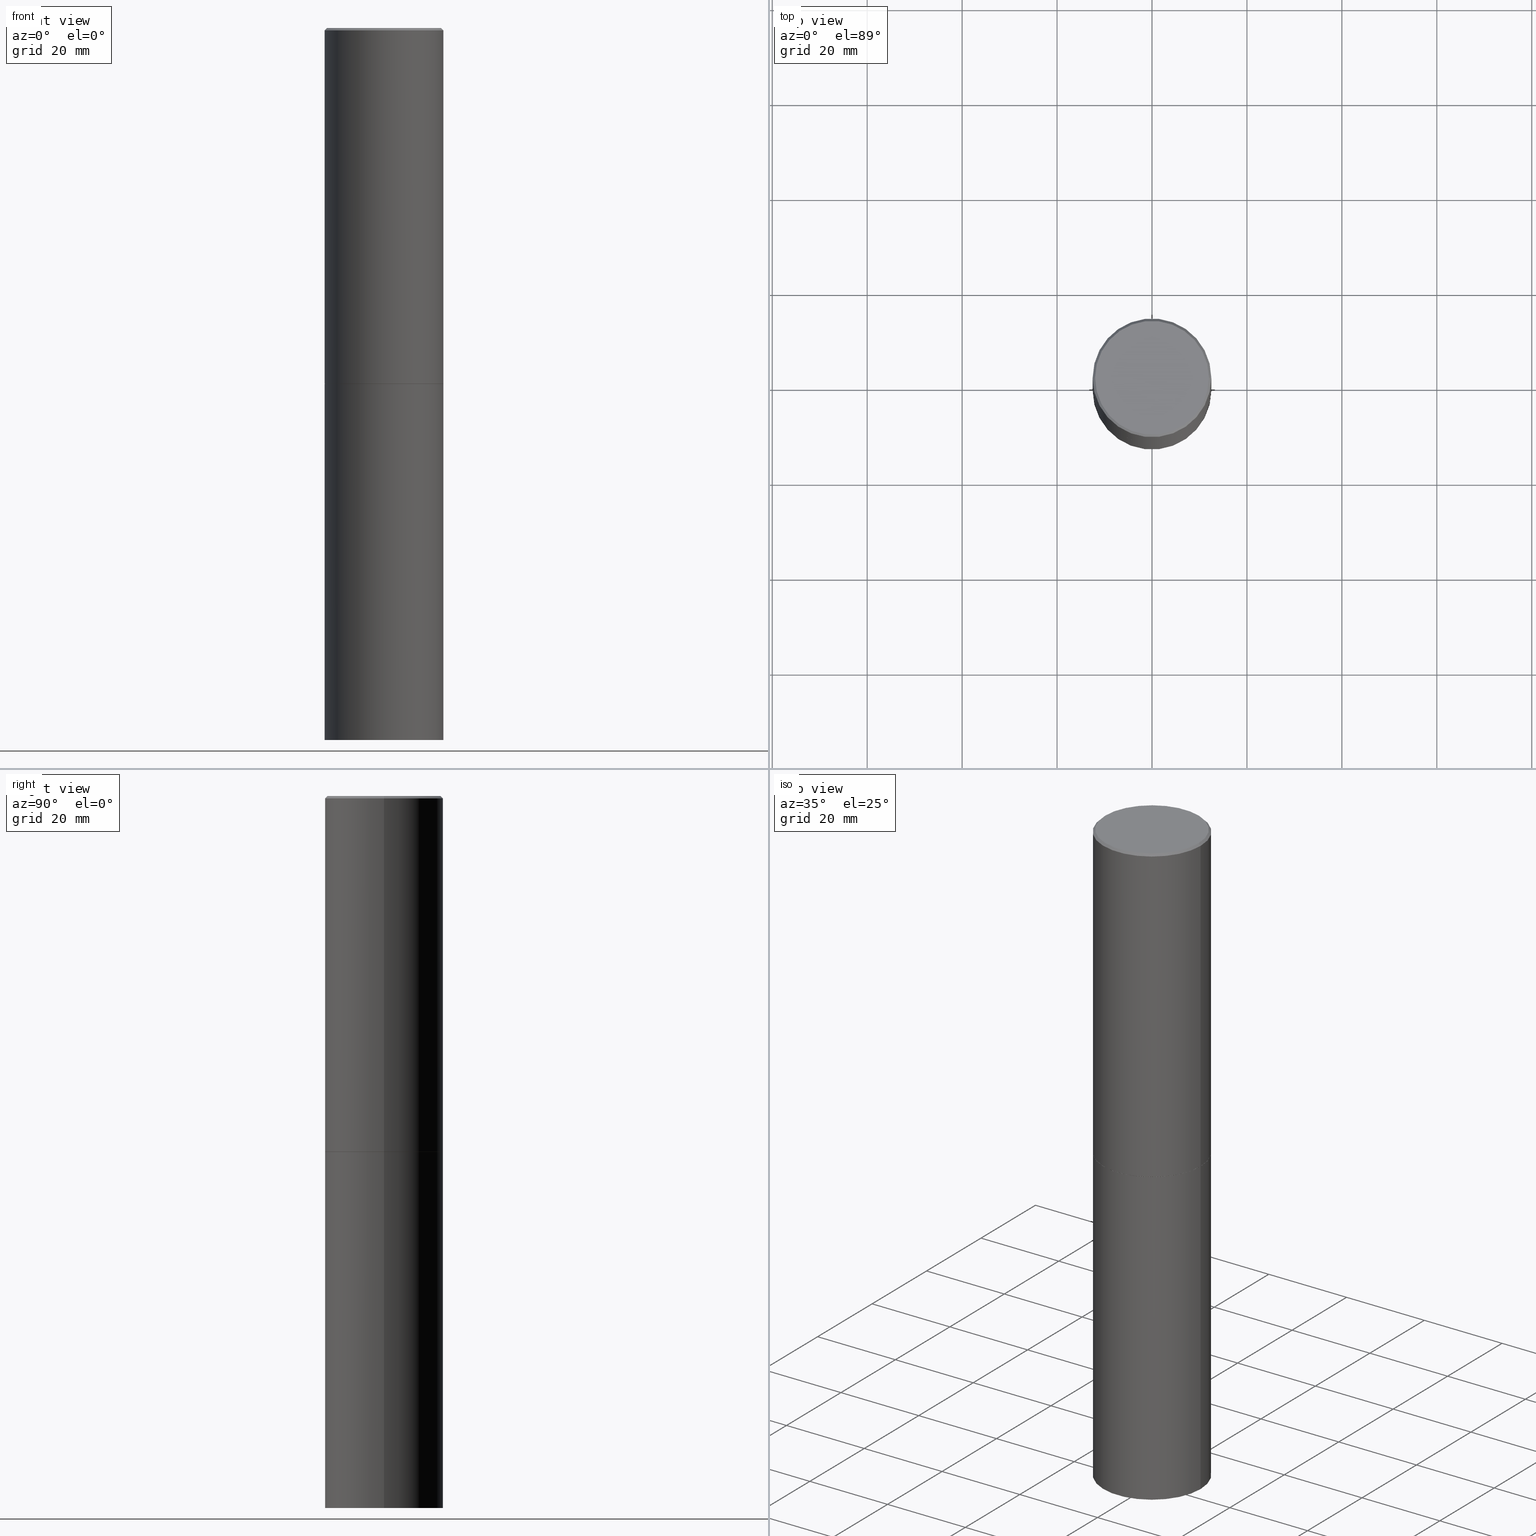
[diagram: canonical four-view strip — front | top / right | iso, engineering-drawing reading convention]
A machine part, canonical four-view strip (front | top / right | iso — engineering-drawing reading convention). The complete STEP part file that produces these views, byte-faithful:
ISO-10303-21;
HEADER;
FILE_DESCRIPTION (( 'STEP AP203' ),
    '1' );
FILE_NAME ('74883.STEP',
    '2024-05-03T15:04:36',
    ( '' ),
    ( '' ),
    'SwSTEP 2.0',
    'SolidWorks 2023',
    '' );
FILE_SCHEMA (( 'CONFIG_CONTROL_DESIGN' ));
ENDSEC;

DATA;
#1 = PERSON ( 'UNSPECIFIED', 'UNSPECIFIED', 'UNSPECIFIED', ('UNSPECIFIED'), ('UNSPECIFIED'), ('UNSPECIFIED') ) ;
#2 = VERTEX_POINT ( 'NONE', #101 ) ;
#3 = LINE ( 'NONE', #239, #11 ) ;
#4 = DIRECTION ( 'NONE',  ( -2.445468806185136597E-29, 3.491481338843145583E-15, 1.000000000000000000 ) ) ;
#5 = APPROVAL_PERSON_ORGANIZATION ( #352, #161, #218 ) ;
#6 = CARTESIAN_POINT ( 'NONE',  ( 0.000000000000000000, 0.000000000000000000, 0.000000000000000000 ) ) ;
#7 = CARTESIAN_POINT ( 'NONE',  ( 1.444171603492632270E-28, -2.061894304653819197E-14, -5.905499999999999972 ) ) ;
#8 = FACE_OUTER_BOUND ( 'NONE', #121, .T. ) ;
#9 = CALENDAR_DATE ( 2024, 3, 5 ) ;
#10 = UNCERTAINTY_MEASURE_WITH_UNIT (LENGTH_MEASURE( 1.000000000000000082E-05 ), #128, 'distance_accuracy_value', 'NONE');
#11 = VECTOR ( 'NONE', #317, 39.37007874015748143 ) ;
#12 = CC_DESIGN_PERSON_AND_ORGANIZATION_ASSIGNMENT ( #214, #126, ( #334 ) ) ;
#13 = DIRECTION ( 'NONE',  ( 1.000000000000000000, -6.982962677686265922E-15, 4.876176775795935793E-29 ) ) ;
#14 = APPROVAL_ROLE ( '' ) ;
#15 = COORDINATED_UNIVERSAL_TIME_OFFSET ( 5, 0, .BEHIND. ) ;
#16 = ORIENTED_EDGE ( 'NONE', *, *, #295, .T. ) ;
#17 = MECHANICAL_CONTEXT ( 'NONE', #51, 'mechanical' ) ;
#18 = ORIENTED_EDGE ( 'NONE', *, *, #365, .T. ) ;
#19 = CALENDAR_DATE ( 2024, 3, 5 ) ;
#20 = DIRECTION ( 'NONE',  ( 1.000000000000000000, -6.982962677686265922E-15, 0.000000000000000000 ) ) ;
#21 = LINE ( 'NONE', #43, #293 ) ;
#22 = AXIS2_PLACEMENT_3D ( 'NONE', #6, #149, #177 ) ;
#23 =( GEOMETRIC_REPRESENTATION_CONTEXT ( 3 ) GLOBAL_UNCERTAINTY_ASSIGNED_CONTEXT ( ( #10 ) ) GLOBAL_UNIT_ASSIGNED_CONTEXT ( ( #128, #252, #100 ) ) REPRESENTATION_CONTEXT ( 'NONE', 'WORKASPACE' ) );
#24 = COORDINATED_UNIVERSAL_TIME_OFFSET ( 5, 0, .BEHIND. ) ;
#25 = VERTEX_POINT ( 'NONE', #50 ) ;
#26 = ORIENTED_EDGE ( 'NONE', *, *, #55, .T. ) ;
#27 = ORIENTED_EDGE ( 'NONE', *, *, #237, .F. ) ;
#28 = ADVANCED_FACE ( 'NONE', ( #223 ), #116, .T. ) ;
#29 = EDGE_LOOP ( 'NONE', ( #56, #97, #72, #27 ) ) ;
#30 = DIRECTION ( 'NONE',  ( 0.7071067811868130271, -2.468850131085038979E-15, 0.7071067811862817853 ) ) ;
#31 = AXIS2_PLACEMENT_3D ( 'NONE', #202, #4, #276 ) ;
#32 = MANIFOLD_SOLID_BREP ( 'Body-Move/Copy2[2]', #361 ) ;
#33 = CARTESIAN_POINT ( 'NONE',  ( 7.220735744022851398E-29, -1.030929694920215344E-14, -2.952699999999999214 ) ) ;
#34 = AXIS2_PLACEMENT_3D ( 'NONE', #154, #243, #292 ) ;
#35 = PERSON_AND_ORGANIZATION ( #1, #78 ) ;
#36 = EDGE_CURVE ( 'NONE', #25, #310, #21, .T. ) ;
#37 = DIRECTION ( 'NONE',  ( -1.000000000000000000, 6.982962677686265922E-15, -4.876176775795935793E-29 ) ) ;
#38 = PERSON_AND_ORGANIZATION_ROLE ( 'design_supplier' ) ;
#39 = CIRCLE ( 'NONE', #225, 0.4921499999999999764 ) ;
#40 = PERSON_AND_ORGANIZATION ( #1, #78 ) ;
#41 = ORIENTED_EDGE ( 'NONE', *, *, #206, .T. ) ;
#42 = DIRECTION ( 'NONE',  ( -2.445468806185136597E-29, 3.491481338843145583E-15, 1.000000000000000000 ) ) ;
#43 = CARTESIAN_POINT ( 'NONE',  ( -0.4921499999999998098, 3.496936074043331714E-15, -2.420853904668950949E-29 ) ) ;
#44 = EDGE_CURVE ( 'NONE', #2, #302, #255, .T. ) ;
#45 = APPROVAL_DATE_TIME ( #301, #280 ) ;
#46 = CARTESIAN_POINT ( 'NONE',  ( 7.220735744022851398E-29, -1.030929694920215344E-14, -2.952699999999999214 ) ) ;
#47 = ORIENTED_EDGE ( 'NONE', *, *, #36, .T. ) ;
#48 = CALENDAR_DATE ( 2024, 3, 5 ) ;
#49 = EDGE_LOOP ( 'NONE', ( #140, #220 ) ) ;
#50 = CARTESIAN_POINT ( 'NONE',  ( -0.4921499999999999764, -1.690881473276754954E-15, -2.951700000000000212 ) ) ;
#51 = APPLICATION_CONTEXT ( 'configuration controlled 3d designs of mechanical parts and assemblies' ) ;
#52 = AXIS2_PLACEMENT_3D ( 'NONE', #112, #258, #57 ) ;
#53 = ORIENTED_EDGE ( 'NONE', *, *, #357, .T. ) ;
#54 = AXIS2_PLACEMENT_3D ( 'NONE', #356, #69, #308 ) ;
#55 = EDGE_CURVE ( 'NONE', #302, #310, #162, .T. ) ;
#56 = ORIENTED_EDGE ( 'NONE', *, *, #74, .T. ) ;
#57 = DIRECTION ( 'NONE',  ( -1.000000000000000000, 6.982962677686265922E-15, -4.876176775795935793E-29 ) ) ;
#58 = FACE_OUTER_BOUND ( 'NONE', #224, .T. ) ;
#59 = CIRCLE ( 'NONE', #77, 0.4921499999999999764 ) ;
#60 = DIRECTION ( 'NONE',  ( 1.000000000000000000, -6.982962677686265922E-15, 0.000000000000000000 ) ) ;
#61 = EDGE_CURVE ( 'NONE', #189, #104, #181, .T. ) ;
#62 = DIRECTION ( 'NONE',  ( -1.000000000000000000, 6.982962677686265922E-15, 0.000000000000000000 ) ) ;
#63 = AXIS2_PLACEMENT_3D ( 'NONE', #346, #176, #205 ) ;
#64 = PERSON_AND_ORGANIZATION_ROLE ( 'design_owner' ) ;
#65 = EDGE_LOOP ( 'NONE', ( #217, #80, #167, #336 ) ) ;
#66 = DIRECTION ( 'NONE',  ( 1.000000000000000000, -6.982962677686264344E-15, 0.000000000000000000 ) ) ;
#67 = ORIENTED_EDGE ( 'NONE', *, *, #155, .F. ) ;
#68 = APPROVAL_STATUS ( 'not_yet_approved' ) ;
#69 = DIRECTION ( 'NONE',  ( -2.445468806185136597E-29, 3.491481338843145583E-15, 1.000000000000000000 ) ) ;
#70 = EDGE_CURVE ( 'NONE', #189, #360, #39, .T. ) ;
#71 = APPROVAL_ROLE ( '' ) ;
#72 = ORIENTED_EDGE ( 'NONE', *, *, #365, .F. ) ;
#73 = CARTESIAN_POINT ( 'NONE',  ( 7.218290275216666916E-29, -1.030580546786331359E-14, -2.951700000000000212 ) ) ;
#74 = EDGE_CURVE ( 'NONE', #272, #328, #270, .T. ) ;
#75 = VERTEX_POINT ( 'NONE', #240 ) ;
#76 = ADVANCED_FACE ( 'NONE', ( #318 ), #210, .T. ) ;
#77 = AXIS2_PLACEMENT_3D ( 'NONE', #238, #119, #242 ) ;
#78 = ORGANIZATION ( 'UNSPECIFIED', 'UNSPECIFIED', '' ) ;
#79 = AXIS2_PLACEMENT_3D ( 'NONE', #236, #147, #168 ) ;
#80 = ORIENTED_EDGE ( 'NONE', *, *, #246, .F. ) ;
#81 = CARTESIAN_POINT ( 'NONE',  ( 7.220735744022851398E-29, -1.030929694920215344E-14, -2.952699999999999214 ) ) ;
#82 = DIRECTION ( 'NONE',  ( -2.445468806185136597E-29, 3.491481338843145583E-15, 1.000000000000000000 ) ) ;
#83 = AXIS2_PLACEMENT_3D ( 'NONE', #93, #118, #37 ) ;
#84 = EDGE_CURVE ( 'NONE', #360, #189, #232, .T. ) ;
#85 = LOCAL_TIME ( 11, 4, 36.00000000000000000, #158 ) ;
#86 = DIRECTION ( 'NONE',  ( 1.000000000000000000, -6.982962677686265922E-15, 4.876176775795935793E-29 ) ) ;
#87 = FACE_OUTER_BOUND ( 'NONE', #65, .T. ) ;
#88 = FACE_OUTER_BOUND ( 'NONE', #170, .T. ) ;
#89 = DIRECTION ( 'NONE',  ( 1.000000000000000000, -6.982962677686265922E-15, 4.876006802227162976E-29 ) ) ;
#90 = CARTESIAN_POINT ( 'NONE',  ( -0.4921499999999999764, -1.196718392382684217E-14, -2.952700000000000102 ) ) ;
#91 = FACE_OUTER_BOUND ( 'NONE', #229, .T. ) ;
#92 = PRODUCT_RELATED_PRODUCT_CATEGORY ( 'detail', '', ( #94 ) ) ;
#93 = CARTESIAN_POINT ( 'NONE',  ( 3.436665081823367957E-15, 0.4921499999999896513, -2.952700000000001435 ) ) ;
#94 = PRODUCT ( '74883', '74883', '', ( #17 ) ) ;
#95 = AXIS2_PLACEMENT_3D ( 'NONE', #341, #82, #86 ) ;
#96 = DESIGN_CONTEXT ( 'detailed design', #283, 'design' ) ;
#97 = ORIENTED_EDGE ( 'NONE', *, *, #155, .T. ) ;
#98 = DIRECTION ( 'NONE',  ( -0.7071067811865467956, 2.468850131082249172E-15, -0.7071067811865482389 ) ) ;
#99 = EDGE_CURVE ( 'NONE', #310, #302, #105, .T. ) ;
#100 =( NAMED_UNIT ( * ) SI_UNIT ( $, .STERADIAN. ) SOLID_ANGLE_UNIT ( ) );
#101 = CARTESIAN_POINT ( 'NONE',  ( 0.4921499999999999764, -1.374247054968660936E-14, -2.951700000000000212 ) ) ;
#102 = EDGE_LOOP ( 'NONE', ( #219, #351, #311, #215 ) ) ;
#103 = PERSON_AND_ORGANIZATION ( #1, #78 ) ;
#104 = VERTEX_POINT ( 'NONE', #271 ) ;
#105 = CIRCLE ( 'NONE', #34, 0.4921499999999996988 ) ;
#106 = APPROVAL_DATE_TIME ( #254, #161 ) ;
#107 = ORIENTED_EDGE ( 'NONE', *, *, #273, .T. ) ;
#108 = ADVANCED_FACE ( 'NONE', ( #175 ), #277, .T. ) ;
#109 = ORIENTED_EDGE ( 'NONE', *, *, #226, .F. ) ;
#110 = VECTOR ( 'NONE', #30, 39.37007874015748854 ) ;
#111 = VERTEX_POINT ( 'NONE', #248 ) ;
#112 = CARTESIAN_POINT ( 'NONE',  ( 3.436665081823440533E-15, 0.4921499999999793262, -5.905500000000001748 ) ) ;
#113 = ADVANCED_FACE ( 'NONE', ( #87 ), #354, .T. ) ;
#114 = LOCAL_TIME ( 11, 4, 36.00000000000000000, #24 ) ;
#115 = DIRECTION ( 'NONE',  ( 2.438088387897960049E-29, -3.491481338843145188E-15, -1.000000000000000000 ) ) ;
#116 = CONICAL_SURFACE ( 'NONE', #172, 0.4911499999999999755, 0.7853981633978239785 ) ;
#117 = AXIS2_PLACEMENT_3D ( 'NONE', #359, #259, #20 ) ;
#118 = DIRECTION ( 'NONE',  ( 2.438088387897960049E-29, -3.491481338843145188E-15, -1.000000000000000000 ) ) ;
#119 = DIRECTION ( 'NONE',  ( -2.445468806185136597E-29, 3.491481338843145583E-15, 1.000000000000000000 ) ) ;
#120 = ADVANCED_FACE ( 'NONE', ( #211 ), #321, .T. ) ;
#121 = EDGE_LOOP ( 'NONE', ( #107, #265 ) ) ;
#122 = DIRECTION ( 'NONE',  ( -1.000000000000000000, 6.982962677686265922E-15, 0.000000000000000000 ) ) ;
#123 = CARTESIAN_POINT ( 'NONE',  ( 0.000000000000000000, 0.000000000000000000, 0.000000000000000000 ) ) ;
#124 = ORIENTED_EDGE ( 'NONE', *, *, #237, .T. ) ;
#125 = CARTESIAN_POINT ( 'NONE',  ( -0.4921499999999996988, 3.366835455046430506E-15, -0.02000000000000009409 ) ) ;
#126 = PERSON_AND_ORGANIZATION_ROLE ( 'classification_officer' ) ;
#127 = ORIENTED_EDGE ( 'NONE', *, *, #44, .T. ) ;
#128 =( CONVERSION_BASED_UNIT ( 'INCH', #139 ) LENGTH_UNIT ( ) NAMED_UNIT ( #228 ) );
#129 = DIRECTION ( 'NONE',  ( -2.445468806185136877E-29, 3.491481338843145188E-15, 1.000000000000000000 ) ) ;
#130 = ADVANCED_FACE ( 'NONE', ( #8 ), #297, .F. ) ;
#131 = DATE_AND_TIME ( #48, #164 ) ;
#132 = APPLICATION_PROTOCOL_DEFINITION ( 'international standard', 'config_control_design', 1994, #283 ) ;
#133 = APPROVAL_STATUS ( 'not_yet_approved' ) ;
#134 = DIRECTION ( 'NONE',  ( -2.445468806185136877E-29, 3.491481338843145188E-15, 1.000000000000000000 ) ) ;
#135 = AXIS2_PLACEMENT_3D ( 'NONE', #274, #173, #122 ) ;
#136 = AXIS2_PLACEMENT_3D ( 'NONE', #123, #298, #245 ) ;
#137 = EDGE_LOOP ( 'NONE', ( #241, #284 ) ) ;
#138 = PERSON_AND_ORGANIZATION ( #1, #78 ) ;
#139 = LENGTH_MEASURE_WITH_UNIT ( LENGTH_MEASURE( 0.02539999999999999897 ), #332 );
#140 = ORIENTED_EDGE ( 'NONE', *, *, #70, .F. ) ;
#141 = PLANE ( 'NONE',  #52 ) ;
#142 = DIRECTION ( 'NONE',  ( 1.000000000000000000, -6.982962677686265922E-15, 0.000000000000000000 ) ) ;
#143 = VERTEX_POINT ( 'NONE', #90 ) ;
#144 = AXIS2_PLACEMENT_3D ( 'NONE', #198, #344, #89 ) ;
#145 = ADVANCED_FACE ( 'NONE', ( #153 ), #349, .F. ) ;
#146 = CC_DESIGN_APPROVAL ( #161, ( #334 ) ) ;
#147 = DIRECTION ( 'NONE',  ( -2.445468806185136597E-29, 3.491481338843145583E-15, 1.000000000000000000 ) ) ;
#148 = EDGE_CURVE ( 'NONE', #111, #310, #171, .T. ) ;
#149 = DIRECTION ( 'NONE',  ( -2.445468806185136597E-29, 3.491481338843145583E-15, 1.000000000000000000 ) ) ;
#150 = CALENDAR_DATE ( 2024, 3, 5 ) ;
#151 = DIRECTION ( 'NONE',  ( 1.000000000000000000, -6.982962677686265922E-15, 0.000000000000000000 ) ) ;
#152 = MANIFOLD_SOLID_BREP ( 'Body-Move/Copy2[1]', #319 ) ;
#153 = FACE_OUTER_BOUND ( 'NONE', #137, .T. ) ;
#154 = CARTESIAN_POINT ( 'NONE',  ( 4.890937612370296805E-31, -6.982962677686323656E-17, -0.02000000000000009409 ) ) ;
#155 = EDGE_CURVE ( 'NONE', #328, #25, #213, .T. ) ;
#156 = CALENDAR_DATE ( 2024, 3, 5 ) ;
#157 = CARTESIAN_POINT ( 'NONE',  ( 0.4921499999999999764, -3.436665081823295777E-15, 2.399810400207969603E-29 ) ) ;
#158 = COORDINATED_UNIVERSAL_TIME_OFFSET ( 5, 0, .BEHIND. ) ;
#159 = DIRECTION ( 'NONE',  ( 1.000000000000000000, -6.982962677686264344E-15, 0.000000000000000000 ) ) ;
#160 = LINE ( 'NONE', #313, #193 ) ;
#161 = APPROVAL ( #133, 'UNSPECIFIED' ) ;
#162 = CIRCLE ( 'NONE', #54, 0.4921499999999996988 ) ;
#163 = CC_DESIGN_PERSON_AND_ORGANIZATION_ASSIGNMENT ( #358, #38, ( #174 ) ) ;
#164 = LOCAL_TIME ( 11, 4, 36.00000000000000000, #279 ) ;
#165 = CARTESIAN_POINT ( 'NONE',  ( -0.4911499999999999755, -6.814167848168200725E-15, -2.952699999999999214 ) ) ;
#166 = CARTESIAN_POINT ( 'NONE',  ( -0.4921499999999996988, 3.366835455046430506E-15, -0.02000000000000009409 ) ) ;
#167 = ORIENTED_EDGE ( 'NONE', *, *, #148, .T. ) ;
#168 = DIRECTION ( 'NONE',  ( 1.000000000000000000, -6.982962677686264344E-15, 0.000000000000000000 ) ) ;
#169 = DIRECTION ( 'NONE',  ( -0.7071067811868130271, 7.493145998871311837E-15, 0.7071067811862817853 ) ) ;
#170 = EDGE_LOOP ( 'NONE', ( #18, #47, #335, #363 ) ) ;
#171 = LINE ( 'NONE', #125, #337 ) ;
#172 = AXIS2_PLACEMENT_3D ( 'NONE', #46, #282, #159 ) ;
#173 = DIRECTION ( 'NONE',  ( 2.445468806185136597E-29, -3.491481338843145583E-15, -1.000000000000000000 ) ) ;
#174 = PRODUCT_DEFINITION_FORMATION_WITH_SPECIFIED_SOURCE ( 'ANY', '', #94, .NOT_KNOWN. ) ;
#175 = FACE_OUTER_BOUND ( 'NONE', #257, .T. ) ;
#176 = DIRECTION ( 'NONE',  ( -2.445468806185136597E-29, 3.491481338843145583E-15, 1.000000000000000000 ) ) ;
#177 = DIRECTION ( 'NONE',  ( 1.000000000000000000, -6.982962677686265922E-15, 4.876176775795935793E-29 ) ) ;
#178 = PERSON_AND_ORGANIZATION ( #1, #78 ) ;
#179 = CARTESIAN_POINT ( 'NONE',  ( -0.4921499999999999764, -1.196718392382684217E-14, -5.905499999999999972 ) ) ;
#180 = AXIS2_PLACEMENT_3D ( 'NONE', #266, #115, #235 ) ;
#181 = LINE ( 'NONE', #157, #188 ) ;
#182 = AXIS2_PLACEMENT_3D ( 'NONE', #230, #195, #340 ) ;
#183 = ORIENTED_EDGE ( 'NONE', *, *, #84, .T. ) ;
#184 = ORIENTED_EDGE ( 'NONE', *, *, #148, .F. ) ;
#185 = DIRECTION ( 'NONE',  ( 1.000000000000000000, -6.982962677686264344E-15, 0.000000000000000000 ) ) ;
#186 = FACE_OUTER_BOUND ( 'NONE', #49, .T. ) ;
#187 = DIRECTION ( 'NONE',  ( -2.445468806185136877E-29, 3.491481338843145188E-15, 1.000000000000000000 ) ) ;
#188 = VECTOR ( 'NONE', #129, 39.37007874015748143 ) ;
#189 = VERTEX_POINT ( 'NONE', #291 ) ;
#190 = LOCAL_TIME ( 11, 4, 36.00000000000000000, #15 ) ;
#191 = CC_DESIGN_PERSON_AND_ORGANIZATION_ASSIGNMENT ( #103, #330, ( #362 ) ) ;
#192 = DIRECTION ( 'NONE',  ( 1.000000000000000000, -6.982962677686265922E-15, 4.876176775795935793E-29 ) ) ;
#193 = VECTOR ( 'NONE', #309, 39.37007874015748143 ) ;
#194 = CIRCLE ( 'NONE', #199, 0.4921499999999999764 ) ;
#195 = DIRECTION ( 'NONE',  ( -2.445468806185136597E-29, 3.491481338843145583E-15, 1.000000000000000000 ) ) ;
#196 = ORIENTED_EDGE ( 'NONE', *, *, #357, .F. ) ;
#197 = CYLINDRICAL_SURFACE ( 'NONE', #95, 0.4921499999999999764 ) ;
#198 = CARTESIAN_POINT ( 'NONE',  ( -2.087702828670439639E-46, 2.980686340760894400E-32, 8.537024980200822558E-18 ) ) ;
#199 = AXIS2_PLACEMENT_3D ( 'NONE', #288, #366, #60 ) ;
#200 = ADVANCED_BREP_SHAPE_REPRESENTATION ( '74883', ( #152, #32, #136 ), #23 ) ;
#201 = CARTESIAN_POINT ( 'NONE',  ( 0.4911499999999999755, -1.373897906834776162E-14, -2.952699999999999214 ) ) ;
#202 = CARTESIAN_POINT ( 'NONE',  ( 0.000000000000000000, 0.000000000000000000, 0.000000000000000000 ) ) ;
#203 = CARTESIAN_POINT ( 'NONE',  ( 7.220735744022851398E-29, -1.030929694920215344E-14, -2.952699999999999214 ) ) ;
#204 = CARTESIAN_POINT ( 'NONE',  ( 0.4911499999999999755, -1.373897906834776162E-14, -2.952699999999999214 ) ) ;
#205 = DIRECTION ( 'NONE',  ( 1.000000000000000000, -6.982962677686265922E-15, 0.000000000000000000 ) ) ;
#206 = EDGE_CURVE ( 'NONE', #75, #302, #3, .T. ) ;
#207 = PLANE ( 'NONE',  #180 ) ;
#208 = AXIS2_PLACEMENT_3D ( 'NONE', #33, #323, #66 ) ;
#209 = CIRCLE ( 'NONE', #347, 0.4921499999999999764 ) ;
#210 = CYLINDRICAL_SURFACE ( 'NONE', #31, 0.4921499999999999764 ) ;
#211 = FACE_OUTER_BOUND ( 'NONE', #231, .T. ) ;
#212 = ORIENTED_EDGE ( 'NONE', *, *, #221, .F. ) ;
#213 = LINE ( 'NONE', #325, #247 ) ;
#214 = PERSON_AND_ORGANIZATION ( #1, #78 ) ;
#215 = ORIENTED_EDGE ( 'NONE', *, *, #61, .F. ) ;
#216 = CARTESIAN_POINT ( 'NONE',  ( 0.4921499999999998098, -3.436665081823294593E-15, 2.399810400207968762E-29 ) ) ;
#217 = ORIENTED_EDGE ( 'NONE', *, *, #206, .F. ) ;
#218 = APPROVAL_ROLE ( '' ) ;
#219 = ORIENTED_EDGE ( 'NONE', *, *, #70, .T. ) ;
#220 = ORIENTED_EDGE ( 'NONE', *, *, #84, .F. ) ;
#221 = EDGE_CURVE ( 'NONE', #360, #143, #160, .T. ) ;
#222 = DATE_TIME_ROLE ( 'classification_date' ) ;
#223 = FACE_OUTER_BOUND ( 'NONE', #260, .T. ) ;
#224 = EDGE_LOOP ( 'NONE', ( #212, #183, #312, #109 ) ) ;
#225 = AXIS2_PLACEMENT_3D ( 'NONE', #7, #316, #151 ) ;
#226 = EDGE_CURVE ( 'NONE', #143, #104, #59, .T. ) ;
#227 = DIRECTION ( 'NONE',  ( -2.445468806185136597E-29, 3.491481338843145583E-15, 1.000000000000000000 ) ) ;
#228 = DIMENSIONAL_EXPONENTS ( 1.000000000000000000, 0.000000000000000000, 0.000000000000000000, 0.000000000000000000, 0.000000000000000000, 0.000000000000000000, 0.000000000000000000 ) ;
#229 = EDGE_LOOP ( 'NONE', ( #275, #286 ) ) ;
#230 = CARTESIAN_POINT ( 'NONE',  ( -2.087702828670439639E-46, 2.980686340760894400E-32, 8.537024980200822558E-18 ) ) ;
#231 = EDGE_LOOP ( 'NONE', ( #249, #53, #127, #324 ) ) ;
#232 = CIRCLE ( 'NONE', #63, 0.4921499999999999764 ) ;
#233 = CC_DESIGN_DATE_AND_TIME_ASSIGNMENT ( #322, #250, ( #362 ) ) ;
#234 = CC_DESIGN_SECURITY_CLASSIFICATION ( #334, ( #174 ) ) ;
#235 = DIRECTION ( 'NONE',  ( -1.000000000000000000, 6.982962677686265922E-15, -4.876176775795935793E-29 ) ) ;
#236 = CARTESIAN_POINT ( 'NONE',  ( 7.220735744022851398E-29, -1.030929694920215344E-14, -2.952699999999999214 ) ) ;
#237 = EDGE_CURVE ( 'NONE', #272, #2, #269, .T. ) ;
#238 = CARTESIAN_POINT ( 'NONE',  ( 7.220735744022852519E-29, -1.030929694920215502E-14, -2.952700000000000102 ) ) ;
#239 = CARTESIAN_POINT ( 'NONE',  ( 0.4921499999999996988, -3.446223716380120377E-15, -0.02000000000000009409 ) ) ;
#240 = CARTESIAN_POINT ( 'NONE',  ( 0.4721499999999996255, -3.342703923013973396E-15, 8.537024980224040028E-18 ) ) ;
#241 = ORIENTED_EDGE ( 'NONE', *, *, #74, .F. ) ;
#242 = DIRECTION ( 'NONE',  ( 1.000000000000000000, -6.982962677686265922E-15, 0.000000000000000000 ) ) ;
#243 = DIRECTION ( 'NONE',  ( -2.445468806185136597E-29, 3.491481338843145583E-15, 1.000000000000000000 ) ) ;
#244 = CARTESIAN_POINT ( 'NONE',  ( 4.890937612370296805E-31, -6.982962677686323656E-17, -0.02000000000000009409 ) ) ;
#245 = DIRECTION ( 'NONE',  ( 1.000000000000000000, 0.000000000000000000, 0.000000000000000000 ) ) ;
#246 = EDGE_CURVE ( 'NONE', #111, #75, #299, .T. ) ;
#247 = VECTOR ( 'NONE', #169, 39.37007874015748854 ) ;
#248 = CARTESIAN_POINT ( 'NONE',  ( -0.4721499999999996255, 3.331920641657999252E-15, 8.537024980177643606E-18 ) ) ;
#249 = ORIENTED_EDGE ( 'NONE', *, *, #36, .F. ) ;
#250 = DATE_TIME_ROLE ( 'creation_date' ) ;
#251 = APPLICATION_PROTOCOL_DEFINITION ( 'international standard', 'config_control_design', 1994, #51 ) ;
#252 =( NAMED_UNIT ( * ) PLANE_ANGLE_UNIT ( ) SI_UNIT ( $, .RADIAN. ) );
#253 = DIRECTION ( 'NONE',  ( -2.445468806185136597E-29, 3.491481338843145583E-15, 1.000000000000000000 ) ) ;
#254 = DATE_AND_TIME ( #19, #85 ) ;
#255 = LINE ( 'NONE', #216, #289 ) ;
#256 = CIRCLE ( 'NONE', #117, 0.4921499999999999764 ) ;
#257 = EDGE_LOOP ( 'NONE', ( #331, #41, #26, #184 ) ) ;
#258 = DIRECTION ( 'NONE',  ( 2.438088387897960049E-29, -3.491481338843145188E-15, -1.000000000000000000 ) ) ;
#259 = DIRECTION ( 'NONE',  ( -2.445468806185136597E-29, 3.491481338843145583E-15, 1.000000000000000000 ) ) ;
#260 = EDGE_LOOP ( 'NONE', ( #67, #16, #124, #196 ) ) ;
#261 = CC_DESIGN_DATE_AND_TIME_ASSIGNMENT ( #131, #222, ( #334 ) ) ;
#262 = AXIS2_PLACEMENT_3D ( 'NONE', #244, #296, #62 ) ;
#263 = ADVANCED_FACE ( 'NONE', ( #91 ), #207, .F. ) ;
#264 = CC_DESIGN_PERSON_AND_ORGANIZATION_ASSIGNMENT ( #178, #64, ( #94 ) ) ;
#265 = ORIENTED_EDGE ( 'NONE', *, *, #226, .T. ) ;
#266 = CARTESIAN_POINT ( 'NONE',  ( 3.297005828269567997E-15, 0.4721499999999996255, -1.644234401644689488E-15 ) ) ;
#267 = LOCAL_TIME ( 11, 4, 36.00000000000000000, #300 ) ;
#268 = ADVANCED_FACE ( 'NONE', ( #58 ), #197, .T. ) ;
#269 = LINE ( 'NONE', #204, #110 ) ;
#270 = CIRCLE ( 'NONE', #208, 0.4911499999999999755 ) ;
#271 = CARTESIAN_POINT ( 'NONE',  ( 0.4921499999999999764, -1.374596203102545079E-14, -2.952700000000000102 ) ) ;
#272 = VERTEX_POINT ( 'NONE', #201 ) ;
#273 = EDGE_CURVE ( 'NONE', #104, #143, #194, .T. ) ;
#274 = CARTESIAN_POINT ( 'NONE',  ( 4.890937612370296805E-31, -6.982962677686323656E-17, -0.02000000000000009409 ) ) ;
#275 = ORIENTED_EDGE ( 'NONE', *, *, #246, .T. ) ;
#276 = DIRECTION ( 'NONE',  ( 1.000000000000000000, -6.982962677686265922E-15, 4.876176775795935793E-29 ) ) ;
#277 = CONICAL_SURFACE ( 'NONE', #262, 0.4921499999999996988, 0.7853981633974472798 ) ;
#278 = DIRECTION ( 'NONE',  ( -2.438088387897960049E-29, 3.491481338843145188E-15, 1.000000000000000000 ) ) ;
#279 = COORDINATED_UNIVERSAL_TIME_OFFSET ( 5, 0, .BEHIND. ) ;
#280 = APPROVAL ( #68, 'UNSPECIFIED' ) ;
#281 = CC_DESIGN_APPROVAL ( #314, ( #362 ) ) ;
#282 = DIRECTION ( 'NONE',  ( -2.445468806185136597E-29, 3.491481338843145583E-15, 1.000000000000000000 ) ) ;
#283 = APPLICATION_CONTEXT ( 'configuration controlled 3d designs of mechanical parts and assemblies' ) ;
#284 = ORIENTED_EDGE ( 'NONE', *, *, #295, .F. ) ;
#285 = CIRCLE ( 'NONE', #79, 0.4911499999999999755 ) ;
#286 = ORIENTED_EDGE ( 'NONE', *, *, #333, .T. ) ;
#287 = FACE_OUTER_BOUND ( 'NONE', #29, .T. ) ;
#288 = CARTESIAN_POINT ( 'NONE',  ( 7.220735744022852519E-29, -1.030929694920215502E-14, -2.952700000000000102 ) ) ;
#289 = VECTOR ( 'NONE', #187, 39.37007874015748143 ) ;
#290 = CARTESIAN_POINT ( 'NONE',  ( 0.4921499999999996988, -3.446223716380120377E-15, -0.02000000000000009409 ) ) ;
#291 = CARTESIAN_POINT ( 'NONE',  ( 0.4921499999999999764, -2.405560812836148932E-14, -5.905499999999999972 ) ) ;
#292 = DIRECTION ( 'NONE',  ( 1.000000000000000000, -6.982962677686265922E-15, 0.000000000000000000 ) ) ;
#293 = VECTOR ( 'NONE', #134, 39.37007874015748143 ) ;
#294 = AXIS2_PLACEMENT_3D ( 'NONE', #343, #227, #192 ) ;
#295 = EDGE_CURVE ( 'NONE', #328, #272, #285, .T. ) ;
#296 = DIRECTION ( 'NONE',  ( 2.445468806185136597E-29, -3.491481338843145583E-15, -1.000000000000000000 ) ) ;
#297 = PLANE ( 'NONE',  #83 ) ;
#298 = DIRECTION ( 'NONE',  ( 0.000000000000000000, 0.000000000000000000, 1.000000000000000000 ) ) ;
#299 = CIRCLE ( 'NONE', #144, 0.4721499999999996255 ) ;
#300 = COORDINATED_UNIVERSAL_TIME_OFFSET ( 5, 0, .BEHIND. ) ;
#301 = DATE_AND_TIME ( #156, #114 ) ;
#302 = VERTEX_POINT ( 'NONE', #290 ) ;
#303 = SECURITY_CLASSIFICATION_LEVEL ( 'unclassified' ) ;
#304 = PRODUCT_DEFINITION_SHAPE ( 'NONE', 'NONE',  #362 ) ;
#305 = AXIS2_PLACEMENT_3D ( 'NONE', #203, #278, #13 ) ;
#306 = ADVANCED_FACE ( 'NONE', ( #186 ), #141, .T. ) ;
#307 = CC_DESIGN_APPROVAL ( #280, ( #174 ) ) ;
#308 = DIRECTION ( 'NONE',  ( 1.000000000000000000, -6.982962677686265922E-15, 0.000000000000000000 ) ) ;
#309 = DIRECTION ( 'NONE',  ( -2.445468806185136877E-29, 3.491481338843145188E-15, 1.000000000000000000 ) ) ;
#310 = VERTEX_POINT ( 'NONE', #166 ) ;
#311 = ORIENTED_EDGE ( 'NONE', *, *, #273, .F. ) ;
#312 = ORIENTED_EDGE ( 'NONE', *, *, #61, .T. ) ;
#313 = CARTESIAN_POINT ( 'NONE',  ( -0.4921499999999999764, 3.496936074043332897E-15, -2.420853904668951509E-29 ) ) ;
#314 = APPROVAL ( #353, 'UNSPECIFIED' ) ;
#315 = CIRCLE ( 'NONE', #182, 0.4721499999999996255 ) ;
#316 = DIRECTION ( 'NONE',  ( -2.445468806185136597E-29, 3.491481338843145583E-15, 1.000000000000000000 ) ) ;
#317 = DIRECTION ( 'NONE',  ( 0.7071067811865467956, -7.319954787623254468E-15, -0.7071067811865482389 ) ) ;
#318 = FACE_OUTER_BOUND ( 'NONE', #102, .T. ) ;
#319 = CLOSED_SHELL ( 'NONE', ( #76, #306, #130, #268 ) ) ;
#320 = AXIS2_PLACEMENT_3D ( 'NONE', #81, #253, #185 ) ;
#321 = CYLINDRICAL_SURFACE ( 'NONE', #22, 0.4921499999999998098 ) ;
#322 = DATE_AND_TIME ( #9, #267 ) ;
#323 = DIRECTION ( 'NONE',  ( -2.445468806185136597E-29, 3.491481338843145583E-15, 1.000000000000000000 ) ) ;
#324 = ORIENTED_EDGE ( 'NONE', *, *, #99, .F. ) ;
#325 = CARTESIAN_POINT ( 'NONE',  ( -0.4911499999999999755, -6.819466302516420761E-15, -2.952699999999999214 ) ) ;
#326 = APPROVAL_DATE_TIME ( #348, #314 ) ;
#327 = ADVANCED_FACE ( 'NONE', ( #88 ), #339, .T. ) ;
#328 = VERTEX_POINT ( 'NONE', #165 ) ;
#329 = CONICAL_SURFACE ( 'NONE', #320, 0.4911499999999999755, 0.7853981633978239785 ) ;
#330 = PERSON_AND_ORGANIZATION_ROLE ( 'creator' ) ;
#331 = ORIENTED_EDGE ( 'NONE', *, *, #333, .F. ) ;
#332 =( LENGTH_UNIT ( ) NAMED_UNIT ( * ) SI_UNIT ( $, .METRE. ) );
#333 = EDGE_CURVE ( 'NONE', #75, #111, #315, .T. ) ;
#334 = SECURITY_CLASSIFICATION ( '', '', #303 ) ;
#335 = ORIENTED_EDGE ( 'NONE', *, *, #55, .F. ) ;
#336 = ORIENTED_EDGE ( 'NONE', *, *, #99, .T. ) ;
#337 = VECTOR ( 'NONE', #98, 39.37007874015748143 ) ;
#338 = APPROVAL_PERSON_ORGANIZATION ( #35, #314, #71 ) ;
#339 = CYLINDRICAL_SURFACE ( 'NONE', #294, 0.4921499999999998098 ) ;
#340 = DIRECTION ( 'NONE',  ( 1.000000000000000000, -6.982962677686265922E-15, 4.876006802227162976E-29 ) ) ;
#341 = CARTESIAN_POINT ( 'NONE',  ( 0.000000000000000000, 0.000000000000000000, 0.000000000000000000 ) ) ;
#342 = CC_DESIGN_PERSON_AND_ORGANIZATION_ASSIGNMENT ( #138, #350, ( #174 ) ) ;
#343 = CARTESIAN_POINT ( 'NONE',  ( 0.000000000000000000, 0.000000000000000000, 0.000000000000000000 ) ) ;
#344 = DIRECTION ( 'NONE',  ( -2.445468806185136597E-29, 3.491481338843145583E-15, 1.000000000000000000 ) ) ;
#345 = ADVANCED_FACE ( 'NONE', ( #287 ), #329, .T. ) ;
#346 = CARTESIAN_POINT ( 'NONE',  ( 1.444171603492632270E-28, -2.061894304653819197E-14, -5.905499999999999972 ) ) ;
#347 = AXIS2_PLACEMENT_3D ( 'NONE', #73, #42, #142 ) ;
#348 = DATE_AND_TIME ( #150, #190 ) ;
#349 = PLANE ( 'NONE',  #305 ) ;
#350 = PERSON_AND_ORGANIZATION_ROLE ( 'creator' ) ;
#351 = ORIENTED_EDGE ( 'NONE', *, *, #221, .T. ) ;
#352 = PERSON_AND_ORGANIZATION ( #1, #78 ) ;
#353 = APPROVAL_STATUS ( 'not_yet_approved' ) ;
#354 = CONICAL_SURFACE ( 'NONE', #135, 0.4921499999999996988, 0.7853981633974472798 ) ;
#355 = SHAPE_DEFINITION_REPRESENTATION ( #304, #200 ) ;
#356 = CARTESIAN_POINT ( 'NONE',  ( 4.890937612370296805E-31, -6.982962677686323656E-17, -0.02000000000000009409 ) ) ;
#357 = EDGE_CURVE ( 'NONE', #25, #2, #209, .T. ) ;
#358 = PERSON_AND_ORGANIZATION ( #1, #78 ) ;
#359 = CARTESIAN_POINT ( 'NONE',  ( 7.218290275216666916E-29, -1.030580546786331359E-14, -2.951700000000000212 ) ) ;
#360 = VERTEX_POINT ( 'NONE', #179 ) ;
#361 = CLOSED_SHELL ( 'NONE', ( #345, #327, #108, #113, #120, #28, #145, #263 ) ) ;
#362 = PRODUCT_DEFINITION ( 'UNKNOWN', '', #174, #96 ) ;
#363 = ORIENTED_EDGE ( 'NONE', *, *, #44, .F. ) ;
#364 = APPROVAL_PERSON_ORGANIZATION ( #40, #280, #14 ) ;
#365 = EDGE_CURVE ( 'NONE', #2, #25, #256, .T. ) ;
#366 = DIRECTION ( 'NONE',  ( -2.445468806185136597E-29, 3.491481338843145583E-15, 1.000000000000000000 ) ) ;
ENDSEC;
END-ISO-10303-21;
